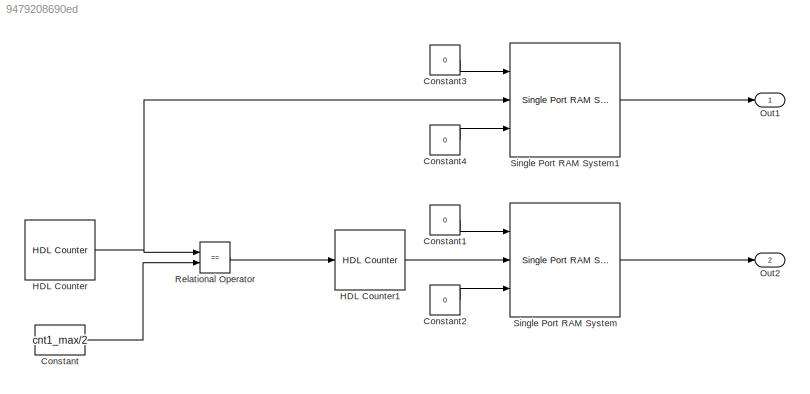
MODEL slx_9479208690ed
KIND model
CONFIG AbsTol = auto
CONFIG EnableMultiTasking = off
CONFIG FixedStep = auto
CONFIG MaxStep = auto
CONFIG MinStep = auto
CONFIG RelTol = 1e-3
CONFIG SampleTimeConstraint = Unconstrained
CONFIG SolverName = VariableStepAuto
CONFIG StartTime = 0.0
CONFIG StopTime = 100000
BLOCK [Constant] Constant
  SampleTime = 1
  Value = cnt1_max/2
BLOCK [Constant] Constant1
  OutDataTypeStr = fixdt(1,16,15)
  SampleTime = 1
  Value = 0
BLOCK [Constant] Constant2
  OutDataTypeStr = boolean
  SampleTime = 1
  Value = 0
BLOCK [Constant] Constant3
  OutDataTypeStr = fixdt(1,16,15)
  SampleTime = 1
  Value = 0
BLOCK [Constant] Constant4
  OutDataTypeStr = boolean
  SampleTime = 1
  Value = 0
BLOCK [Reference] HDL Counter  REF=hdlsllib/Sources/HDL Counter
  Ports = [0, 1]
  SourceBlock = hdlsllib/Sources/HDL Counter
  SourceProductBaseCode = SL
  SourceType = HDL Counter
BLOCK [Reference] HDL Counter1  REF=hdlsllib/Sources/HDL Counter
  Ports = [1, 1]
  SourceBlock = hdlsllib/Sources/HDL Counter
  SourceProductBaseCode = SL
  SourceType = HDL Counter
BLOCK [Outport] Out1
  VectorParamsAs1DForOutWhenUnconnected = off
BLOCK [Outport] Out2
  Port = 2
  VectorParamsAs1DForOutWhenUnconnected = off
BLOCK [RelationalOperator] Relational Operator
  InputSameDT = off
  Operator = ==
  OutDataTypeStr = boolean
  Ports = [2, 1]
BLOCK [Reference] Single Port RAM System  REF=hdlsllib/HDL RAMs/Single Port RAM System
  Ports = [3, 1]
  SourceBlock = hdlsllib/HDL RAMs/Single Port RAM System
  SourceProductBaseCode = SL
  SourceType = hdl.RAM
BLOCK [Reference] Single Port RAM System1  REF=hdlsllib/HDL RAMs/Single Port RAM System
  Ports = [3, 1]
  SourceBlock = hdlsllib/HDL RAMs/Single Port RAM System
  SourceProductBaseCode = SL
  SourceType = hdl.RAM
LINE Constant1:1 -> Single Port RAM System:1
LINE Constant2:1 -> Single Port RAM System:3
LINE Constant3:1 -> Single Port RAM System1:1
LINE Constant4:1 -> Single Port RAM System1:3
LINE Constant:1 -> Relational Operator:2
LINE HDL Counter1:1 -> Single Port RAM System:2
NET HDL Counter:1 -> Relational Operator:1, Single Port RAM System1:2
LINE Relational Operator:1 -> HDL Counter1:1
LINE Single Port RAM System1:1 -> Out1:1
LINE Single Port RAM System:1 -> Out2:1
note: NET lines group one-source signal fan-out (src -> all destinations, sorted); 1:1 wires keep LINE
